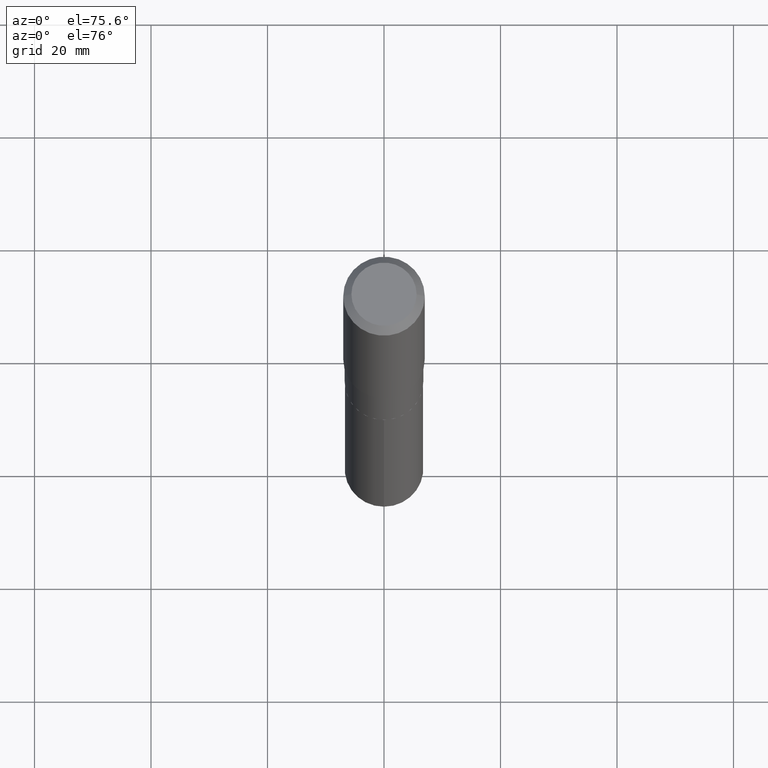
[diagram: clean part render]
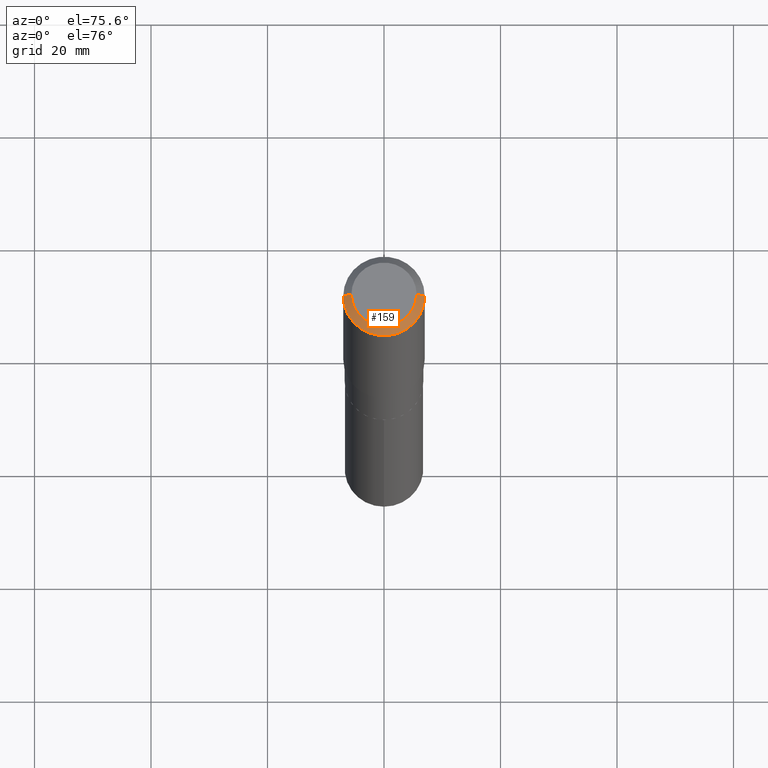
[diagram: same view with one face highlighted and labeled with its STEP entity id]
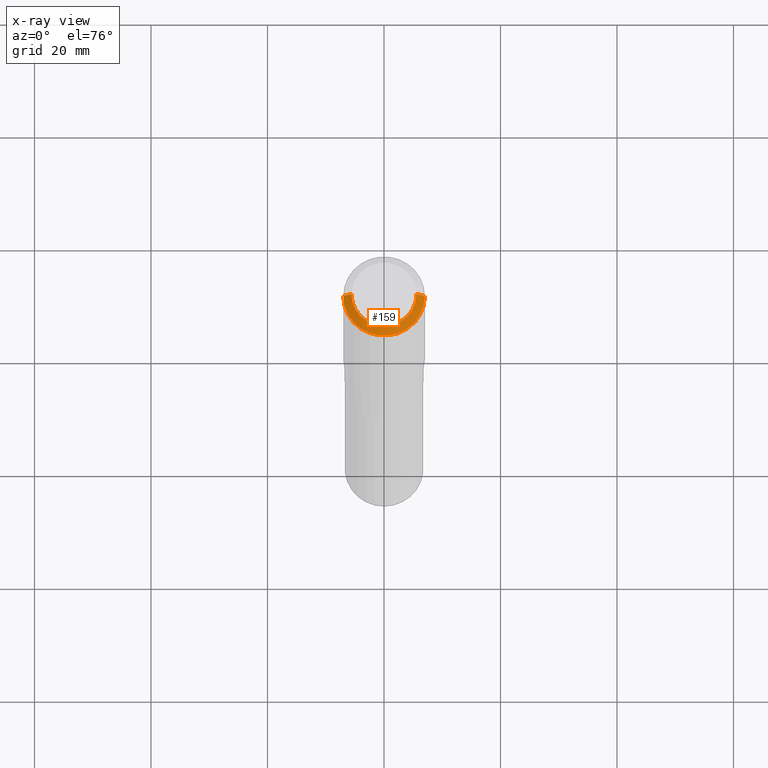
[diagram: x-ray of the same camera — body ghosted, the highlighted face saturated]
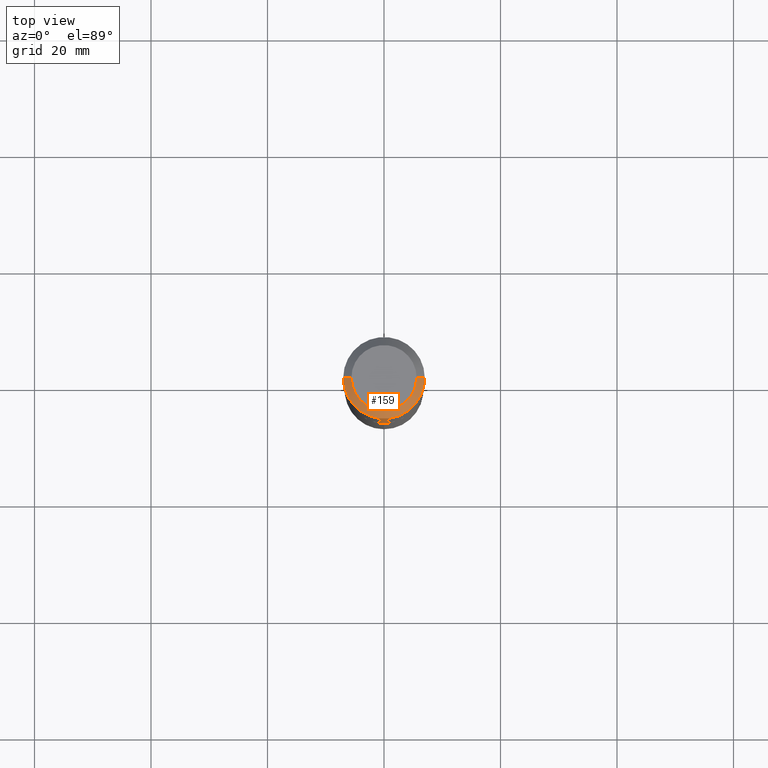
[diagram: same view with one face highlighted and labeled with its STEP entity id]
A machine part, auxiliary view. The second image highlights one B-rep face of the part: STEP entity #159.
The next image is the same camera in x-ray: the body ghosted, the highlighted face saturated — about 0% of this face is hidden behind the body in this view.
A second angle (top view) of the same face is appended — the face is thin or edge-on in the first view.
In plain terms, the highlighted conical surface has half-angle 45 deg.
Its self-contained STEP definition (entity closure, byte-faithful):
#2 = VERTEX_POINT ( 'NONE', #42 ) ;
#6 = EDGE_LOOP ( 'NONE', ( #257, #111, #490, #223 ) ) ;
#18 = VECTOR ( 'NONE', #103, 39.37007874015748143 ) ;
#31 = VECTOR ( 'NONE', #243, 39.37007874015748143 ) ;
#42 = CARTESIAN_POINT ( 'NONE',  ( 0.2204800000000000093, -1.797903149065768707E-15, 3.860086710924123164E-18 ) ) ;
#46 = CARTESIAN_POINT ( 'NONE',  ( -9.439721640706190018E-47, 1.347742071746724849E-32, 3.860086710912454339E-18 ) ) ;
#49 = DIRECTION ( 'NONE',  ( -2.445468806185136597E-29, 3.491481338843145583E-15, 1.000000000000000000 ) ) ;
#69 = EDGE_CURVE ( 'NONE', #2, #302, #450, .T. ) ;
#98 = FACE_OUTER_BOUND ( 'NONE', #6, .T. ) ;
#103 = DIRECTION ( 'NONE',  ( -0.7071067811865453523, 2.468850131082234184E-15, -0.7071067811865496822 ) ) ;
#111 = ORIENTED_EDGE ( 'NONE', *, *, #214, .F. ) ;
#141 = LINE ( 'NONE', #375, #18 ) ;
#149 = DIRECTION ( 'NONE',  ( -1.000000000000000000, 6.982962677686269077E-15, 0.000000000000000000 ) ) ;
#157 = AXIS2_PLACEMENT_3D ( 'NONE', #438, #49, #164 ) ;
#159 = ADVANCED_FACE ( 'NONE', ( #98 ), #256, .T. ) ;
#162 = DIRECTION ( 'NONE',  ( 1.000000000000000000, -6.982962677686266711E-15, 4.876132675269083677E-29 ) ) ;
#164 = DIRECTION ( 'NONE',  ( 1.000000000000000000, -6.982962677686265922E-15, 0.000000000000000000 ) ) ;
#170 = EDGE_CURVE ( 'NONE', #171, #216, #141, .T. ) ;
#171 = VERTEX_POINT ( 'NONE', #231 ) ;
#181 = EDGE_CURVE ( 'NONE', #216, #302, #465, .T. ) ;
#198 = DIRECTION ( 'NONE',  ( -2.445468806185136597E-29, 3.491481338843145583E-15, 1.000000000000000000 ) ) ;
#214 = EDGE_CURVE ( 'NONE', #171, #2, #390, .T. ) ;
#216 = VERTEX_POINT ( 'NONE', #476 ) ;
#222 = AXIS2_PLACEMENT_3D ( 'NONE', #341, #385, #149 ) ;
#223 = ORIENTED_EDGE ( 'NONE', *, *, #181, .T. ) ;
#231 = CARTESIAN_POINT ( 'NONE',  ( -0.2204800000000000093, 1.635828836874783961E-15, 3.860086710901350968E-18 ) ) ;
#243 = DIRECTION ( 'NONE',  ( 0.7071067811865453523, -7.319954787623248157E-15, -0.7071067811865496822 ) ) ;
#256 = CONICAL_SURFACE ( 'NONE', #222, 0.2756000000000000116, 0.7853981633974452814 ) ;
#257 = ORIENTED_EDGE ( 'NONE', *, *, #69, .F. ) ;
#302 = VERTEX_POINT ( 'NONE', #343 ) ;
#338 = CARTESIAN_POINT ( 'NONE',  ( 0.2756000000000000116, -2.083203699582869812E-15, -0.05512000000000035621 ) ) ;
#341 = CARTESIAN_POINT ( 'NONE',  ( 1.347942405969256063E-30, -1.924504513970354330E-16, -0.05512000000000035621 ) ) ;
#343 = CARTESIAN_POINT ( 'NONE',  ( 0.2756000000000000116, -2.116954965367370658E-15, -0.05512000000000035621 ) ) ;
#375 = CARTESIAN_POINT ( 'NONE',  ( -0.2756000000000000116, 1.732054062573300039E-15, -0.05512000000000035621 ) ) ;
#385 = DIRECTION ( 'NONE',  ( 2.445468806185136597E-29, -3.491481338843145583E-15, -1.000000000000000000 ) ) ;
#390 = CIRCLE ( 'NONE', #451, 0.2204800000000000093 ) ;
#438 = CARTESIAN_POINT ( 'NONE',  ( 1.347942405969256063E-30, -1.924504513970354330E-16, -0.05512000000000035621 ) ) ;
#450 = LINE ( 'NONE', #338, #31 ) ;
#451 = AXIS2_PLACEMENT_3D ( 'NONE', #46, #198, #162 ) ;
#465 = CIRCLE ( 'NONE', #157, 0.2756000000000000116 ) ;
#476 = CARTESIAN_POINT ( 'NONE',  ( -0.2756000000000000116, -1.211956903694655137E-15, -0.05512000000000035621 ) ) ;
#490 = ORIENTED_EDGE ( 'NONE', *, *, #170, .T. ) ;